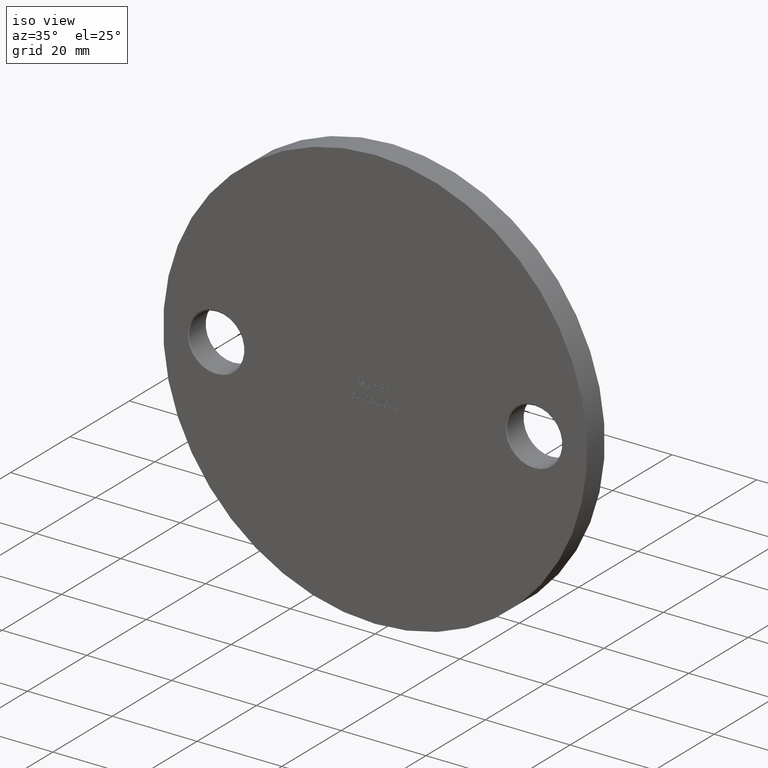
[diagram: clean part render]
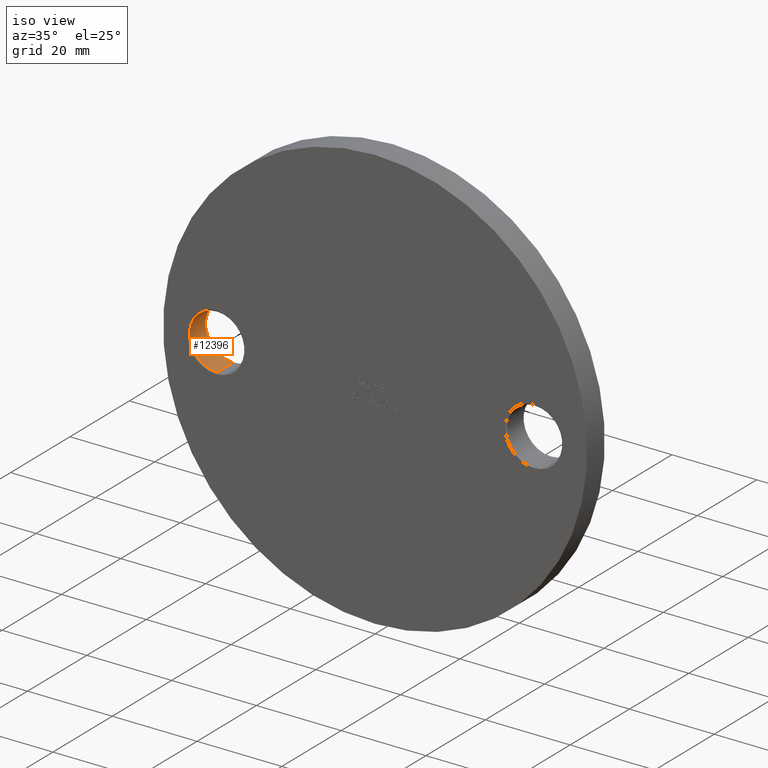
[diagram: same view with one face highlighted and labeled with its STEP entity id]
A machine part, iso view. The second image highlights one B-rep face of the part: STEP entity #12396.
In plain terms, the highlighted cylindrical surface (edge-blend (fillet) strip) has radius 6.5 mm, axis along (-0, -1, -0).
Its self-contained STEP definition (entity closure, byte-faithful):
#100 = ORIENTED_EDGE ( 'NONE', *, *, #10419, .T. ) ;
#732 = CIRCLE ( 'NONE', #2329, 6.500000000000000888 ) ;
#742 = CARTESIAN_POINT ( 'NONE',  ( -37.50000000000000000, 5.749999999999986677, -6.500000000000000888 ) ) ;
#750 = EDGE_CURVE ( 'NONE', #11137, #10665, #732, .T. ) ;
#1421 = CIRCLE ( 'NONE', #4261, 6.500000000000000888 ) ;
#1973 = CARTESIAN_POINT ( 'NONE',  ( -37.50000000000000000, 6.000000000000000000, 0.000000000000000000 ) ) ;
#2055 = FACE_OUTER_BOUND ( 'NONE', #10759, .T. ) ;
#2329 = AXIS2_PLACEMENT_3D ( 'NONE', #2869, #11420, #13748 ) ;
#2491 = CARTESIAN_POINT ( 'NONE',  ( -37.50000000000000000, 0.2499999999999967526, 6.500000000000000888 ) ) ;
#2869 = CARTESIAN_POINT ( 'NONE',  ( -37.50000000000000000, 0.2499999999999967526, 0.000000000000000000 ) ) ;
#3088 = VECTOR ( 'NONE', #4534, 1000.000000000000000 ) ;
#3461 = CARTESIAN_POINT ( 'NONE',  ( -37.50000000000000000, 0.2499999999999967526, -6.500000000000000888 ) ) ;
#4085 = VERTEX_POINT ( 'NONE', #5629 ) ;
#4134 = DIRECTION ( 'NONE',  ( -0.000000000000000000, -1.000000000000000000, -0.000000000000000000 ) ) ;
#4232 = CARTESIAN_POINT ( 'NONE',  ( -37.50000000000000000, 6.000000000000000000, 6.500000000000000888 ) ) ;
#4261 = AXIS2_PLACEMENT_3D ( 'NONE', #8688, #6470, #5483 ) ;
#4534 = DIRECTION ( 'NONE',  ( -0.000000000000000000, -1.000000000000000000, -0.000000000000000000 ) ) ;
#4669 = CARTESIAN_POINT ( 'NONE',  ( -37.50000000000000000, 6.000000000000000000, -6.500000000000000888 ) ) ;
#5025 = EDGE_CURVE ( 'NONE', #4085, #11137, #11402, .T. ) ;
#5483 = DIRECTION ( 'NONE',  ( 0.000000000000000000, 0.000000000000000000, 1.000000000000000000 ) ) ;
#5629 = CARTESIAN_POINT ( 'NONE',  ( -37.50000000000000000, 5.749999999999986677, 6.500000000000000888 ) ) ;
#6337 = AXIS2_PLACEMENT_3D ( 'NONE', #1973, #4134, #8384 ) ;
#6470 = DIRECTION ( 'NONE',  ( 0.000000000000000000, 1.000000000000000000, 0.000000000000000000 ) ) ;
#7161 = ORIENTED_EDGE ( 'NONE', *, *, #5025, .T. ) ;
#8384 = DIRECTION ( 'NONE',  ( 0.000000000000000000, 0.000000000000000000, -1.000000000000000000 ) ) ;
#8688 = CARTESIAN_POINT ( 'NONE',  ( -37.50000000000000000, 5.749999999999986677, 0.000000000000000000 ) ) ;
#8745 = VECTOR ( 'NONE', #13750, 1000.000000000000000 ) ;
#10419 = EDGE_CURVE ( 'NONE', #12467, #4085, #1421, .T. ) ;
#10665 = VERTEX_POINT ( 'NONE', #3461 ) ;
#10708 = EDGE_CURVE ( 'NONE', #12467, #10665, #11650, .T. ) ;
#10759 = EDGE_LOOP ( 'NONE', ( #100, #7161, #13420, #10982 ) ) ;
#10982 = ORIENTED_EDGE ( 'NONE', *, *, #10708, .F. ) ;
#11137 = VERTEX_POINT ( 'NONE', #2491 ) ;
#11402 = LINE ( 'NONE', #4232, #8745 ) ;
#11420 = DIRECTION ( 'NONE',  ( -0.000000000000000000, -1.000000000000000000, -0.000000000000000000 ) ) ;
#11650 = LINE ( 'NONE', #4669, #3088 ) ;
#12396 = ADVANCED_FACE ( 'NONE', ( #2055 ), #13672, .F. ) ;
#12467 = VERTEX_POINT ( 'NONE', #742 ) ;
#13420 = ORIENTED_EDGE ( 'NONE', *, *, #750, .T. ) ;
#13672 = CYLINDRICAL_SURFACE ( 'NONE', #6337, 6.500000000000000888 ) ;
#13748 = DIRECTION ( 'NONE',  ( 0.000000000000000000, 0.000000000000000000, 1.000000000000000000 ) ) ;
#13750 = DIRECTION ( 'NONE',  ( -0.000000000000000000, -1.000000000000000000, -0.000000000000000000 ) ) ;